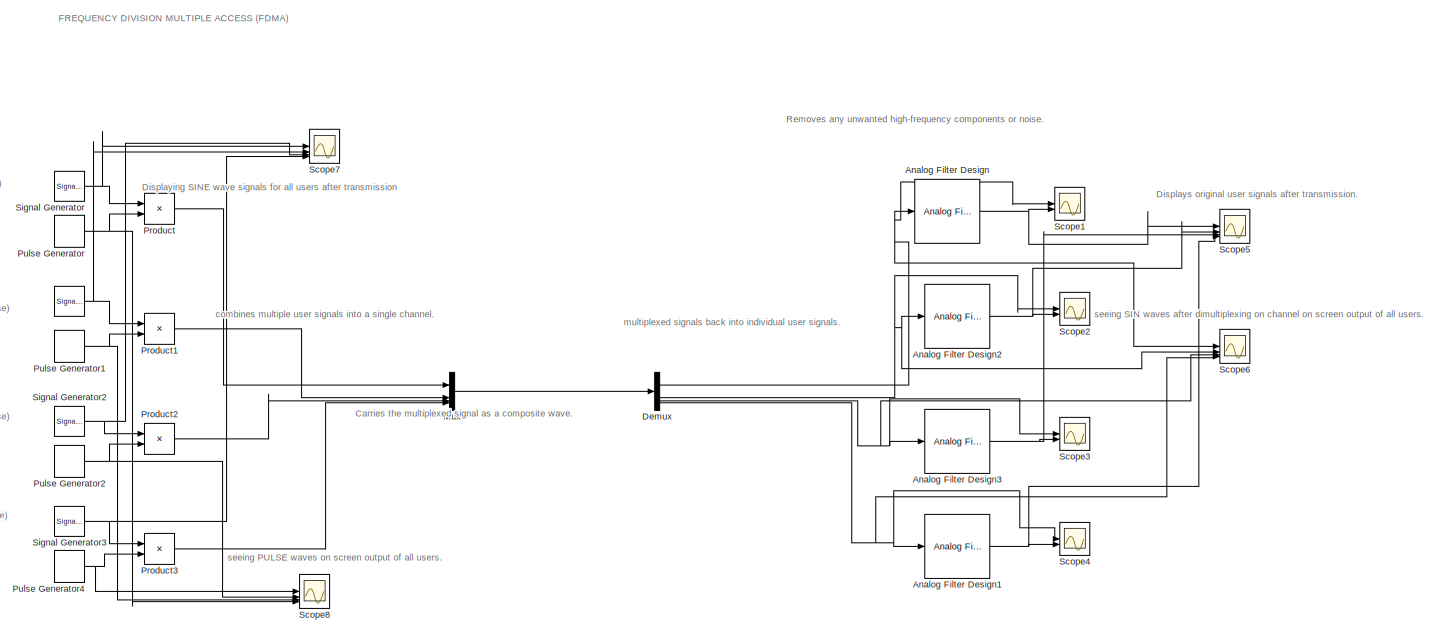
[diagram: root canvas - part 1/2, most of the canvas]
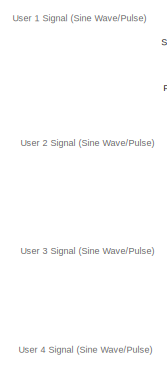
[diagram: root canvas - part 2/2, middle left region]
MODEL slx_aca2ee3428d3
KIND model
CONFIG AbsTol = auto
CONFIG EnableMultiTasking = off
CONFIG FixedStep = auto
CONFIG MaxStep = auto
CONFIG MinStep = auto
CONFIG RelTol = 1e-3
CONFIG SampleTimeConstraint = Unconstrained
CONFIG SolverName = VariableStepAuto
CONFIG StartTime = 0.0
CONFIG StopTime = 10.0
BLOCK [SignalGenerator]  
  Frequency = 3*pi
  Units = rad/sec
BLOCK [Reference] Analog Filter Design  REF=dsparch4/Analog
Filter Design
  SourceBlock = dsparch4/Analog\nFilter Design
  SourceType = Analog Filter Design
BLOCK [Reference] Analog Filter Design1  REF=dsparch4/Analog
Filter Design
  SourceBlock = dsparch4/Analog\nFilter Design
  SourceType = Analog Filter Design
BLOCK [Reference] Analog Filter Design2  REF=dsparch4/Analog
Filter Design
  SourceBlock = dsparch4/Analog\nFilter Design
  SourceType = Analog Filter Design
BLOCK [Reference] Analog Filter Design3  REF=dsparch4/Analog
Filter Design
  SourceBlock = dsparch4/Analog\nFilter Design
  SourceType = Analog Filter Design
BLOCK [Demux] Demux
BLOCK [Mux] Mux
  DisplayOption = bar
BLOCK [Product] Product
BLOCK [Product] Product1
BLOCK [Product] Product2
BLOCK [Product] Product3
BLOCK [DiscretePulseGenerator] Pulse Generator
  Period = 0.1
  PulseType = Time based
  PulseWidth = 25
BLOCK [DiscretePulseGenerator] Pulse Generator1
  Period = 0.1
  PulseType = Time based
  PulseWidth = 25
BLOCK [DiscretePulseGenerator] Pulse Generator2
  Period = 0.1
  PulseType = Time based
  PulseWidth = 25
BLOCK [DiscretePulseGenerator] Pulse Generator4
  Period = 0.1
  PulseType = Time based
  PulseWidth = 25
BLOCK [Scope] Scope1
  Floating = off
  NumInputPorts = 2
  ScopeSpecificationString = Simulink.scopes.TimeScopeBlockCfg('CurrentConfiguration', extmgr.ConfigurationSet(extmgr.Configuration('Core','General UI',true),extmgr.Configuration('Core','Source UI',true),extmgr.Configuration('Sources','WiredSimulink',true,'DataLoggingVariableName','ScopeData1'),extmgr.Configuration('Visuals','Time Domain',true,'SerializedDisplays',{struct('MinYLimReal','-1.22943','MaxYLimReal','1.22884','YLab...<+2049ch>
BLOCK [Scope] Scope2
  Floating = off
  NumInputPorts = 2
  ScopeSpecificationString = Simulink.scopes.TimeScopeBlockCfg('CurrentConfiguration', extmgr.ConfigurationSet(extmgr.Configuration('Core','General UI',true),extmgr.Configuration('Core','Source UI',true),extmgr.Configuration('Sources','WiredSimulink',true,'DataLoggingVariableName','ScopeData2'),extmgr.Configuration('Visuals','Time Domain',true,'SerializedDisplays',{struct('MinYLimReal','-1.25','MaxYLimReal','1.25','YLabelReal...<+2119ch>
BLOCK [Scope] Scope3
  Floating = off
  NumInputPorts = 2
  ScopeSpecificationString = Simulink.scopes.TimeScopeBlockCfg('CurrentConfiguration', extmgr.ConfigurationSet(extmgr.Configuration('Core','General UI',true),extmgr.Configuration('Core','Source UI',true),extmgr.Configuration('Sources','WiredSimulink',true,'DataLoggingVariableName','ScopeData3'),extmgr.Configuration('Visuals','Time Domain',true,'SerializedDisplays',{struct('MinYLimReal','-1.19483','MaxYLimReal','1.24295','YLab...<+2146ch>
BLOCK [Scope] Scope4
  Floating = off
  NumInputPorts = 2
  ScopeSpecificationString = Simulink.scopes.TimeScopeBlockCfg('CurrentConfiguration', extmgr.ConfigurationSet(extmgr.Configuration('Core','General UI',true),extmgr.Configuration('Core','Source UI',true),extmgr.Configuration('Sources','WiredSimulink',true,'DataLoggingVariableName','ScopeData4'),extmgr.Configuration('Visuals','Time Domain',true,'SerializedDisplays',{struct('MinYLimReal','-1.25','MaxYLimReal','1.25','YLabelReal...<+2119ch>
BLOCK [Scope] Scope5
  Floating = off
  NumInputPorts = 4
  ScopeSpecificationString = Simulink.scopes.TimeScopeBlockCfg('CurrentConfiguration', extmgr.ConfigurationSet(extmgr.Configuration('Core','General UI',true),extmgr.Configuration('Core','Source UI',true),extmgr.Configuration('Sources','WiredSimulink',true,'DataLoggingVariableName','ScopeData5'),extmgr.Configuration('Visuals','Time Domain',true,'SerializedDisplays',{struct('MinYLimReal','-0.31157','MaxYLimReal','0.31219','YLab...<+3501ch>
BLOCK [Scope] Scope6
  Floating = off
  NumInputPorts = 4
  ScopeSpecificationString = Simulink.scopes.TimeScopeBlockCfg('CurrentConfiguration', extmgr.ConfigurationSet(extmgr.Configuration('Core','General UI',true),extmgr.Configuration('Core','Source UI',true),extmgr.Configuration('Sources','WiredSimulink',true,'DataLoggingVariableName','ScopeData6'),extmgr.Configuration('Visuals','Time Domain',true,'SerializedDisplays',{struct('MinYLimReal','-1.22943','MaxYLimReal','1.22884','YLab...<+3439ch>
BLOCK [Scope] Scope7
  Floating = off
  NumInputPorts = 4
  ScopeSpecificationString = Simulink.scopes.TimeScopeBlockCfg('CurrentConfiguration', extmgr.ConfigurationSet(extmgr.Configuration('Core','General UI',true),extmgr.Configuration('Core','Source UI',true),extmgr.Configuration('Sources','WiredSimulink',true,'DataLoggingVariableName','ScopeData7'),extmgr.Configuration('Visuals','Time Domain',true,'SerializedDisplays',{struct('MinYLimReal','-1.25','MaxYLimReal','1.25','YLabelReal...<+3450ch>
BLOCK [Scope] Scope8
  Floating = off
  NumInputPorts = 4
  ScopeSpecificationString = Simulink.scopes.TimeScopeBlockCfg('CurrentConfiguration', extmgr.ConfigurationSet(extmgr.Configuration('Core','General UI',true),extmgr.Configuration('Core','Source UI',true),extmgr.Configuration('Sources','WiredSimulink',true),extmgr.Configuration('Visuals','Time Domain',true,'SerializedDisplays',{struct('MinYLimReal','-0.125','MaxYLimReal','1.125','YLabelReal','','MinYLimMag','0.00000','MaxYLimM...<+3423ch>
BLOCK [SignalGenerator] Signal Generator
  Frequency = 2*pi
  Units = rad/sec
BLOCK [SignalGenerator] Signal Generator2
  Frequency = 4*pi
  Units = rad/sec
BLOCK [SignalGenerator] Signal Generator3
  Frequency = 5*pi
  Units = rad/sec
ANNOTATION (root): Carries the multiplexed signal as a composite wave.
ANNOTATION (root): User 1 Signal (Sine Wave/Pulse)
ANNOTATION (root): User 2 Signal (Sine Wave/Pulse)
ANNOTATION (root): User 3 Signal (Sine Wave/Pulse)
ANNOTATION (root): User 4 Signal (Sine Wave/Pulse)
ANNOTATION (root): Removes any unwanted high-frequency components or noise.
ANNOTATION (root): multiplexed signals back into individual user signals.
ANNOTATION (root): Displays original user signals after transmission.
ANNOTATION (root): Displaying SINE wave signals for all users after transmission
ANNOTATION (root): combines multiple user signals into a single channel .
ANNOTATION (root): seeing PULSE waves on screen output of all users.
ANNOTATION (root): seeing SIN waves after dimultiplexing on channel on screen output of all users.
ANNOTATION (root): FREQUENCY DIVISION MULTIPLE ACCESS (FDMA)
NET  :1 -> Product1:1, Scope7:2
NET Analog Filter Design1:1 -> Scope4:2, Scope5:4
NET Analog Filter Design2:1 -> Scope2:2, Scope5:2
NET Analog Filter Design3:1 -> Scope3:2, Scope5:3
NET Analog Filter Design:1 -> Scope1:2, Scope5:1
NET Demux:1 -> Analog Filter Design:1, Scope1:1, Scope6:1
NET Demux:2 -> Analog Filter Design2:1, Scope2:1, Scope6:2
NET Demux:3 -> Analog Filter Design3:1, Scope3:1, Scope6:3
NET Demux:4 -> Analog Filter Design1:1, Scope4:1, Scope6:4
LINE Mux:1 -> Demux:1
LINE Product1:1 -> Mux:2
LINE Product2:1 -> Mux:3
LINE Product3:1 -> Mux:4
LINE Product:1 -> Mux:1
NET Pulse Generator1:1 -> Product1:2, Scope8:3
NET Pulse Generator2:1 -> Product2:2, Scope8:2
NET Pulse Generator4:1 -> Product3:2, Scope8:1
NET Pulse Generator:1 -> Product:2, Scope8:4
NET Signal Generator2:1 -> Product2:1, Scope7:3
NET Signal Generator3:1 -> Product3:1, Scope7:4
NET Signal Generator:1 -> Product:1, Scope7:1
note: NET lines group one-source signal fan-out (src -> all destinations, sorted); 1:1 wires keep LINE
